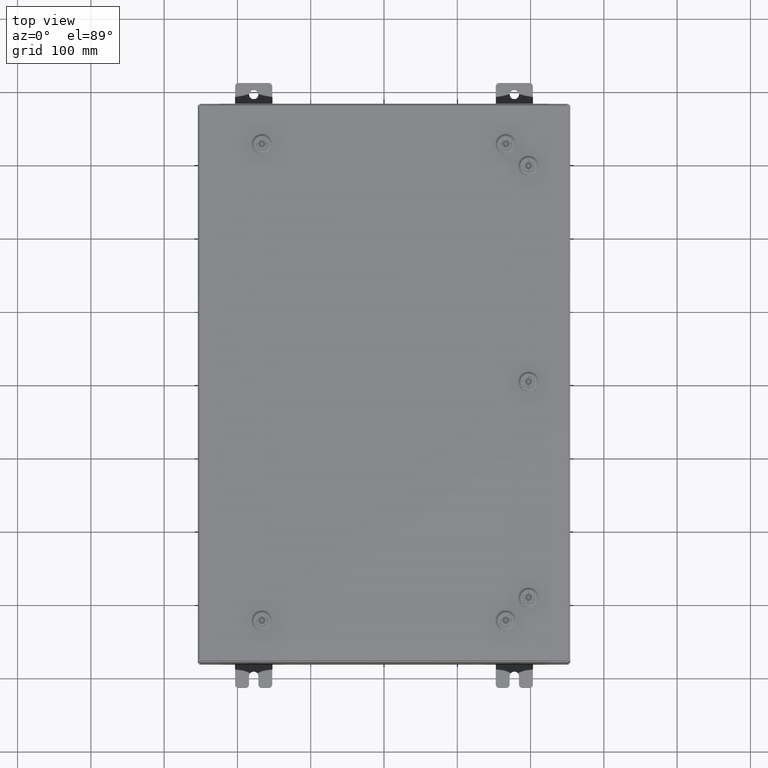
[diagram: clean part render]
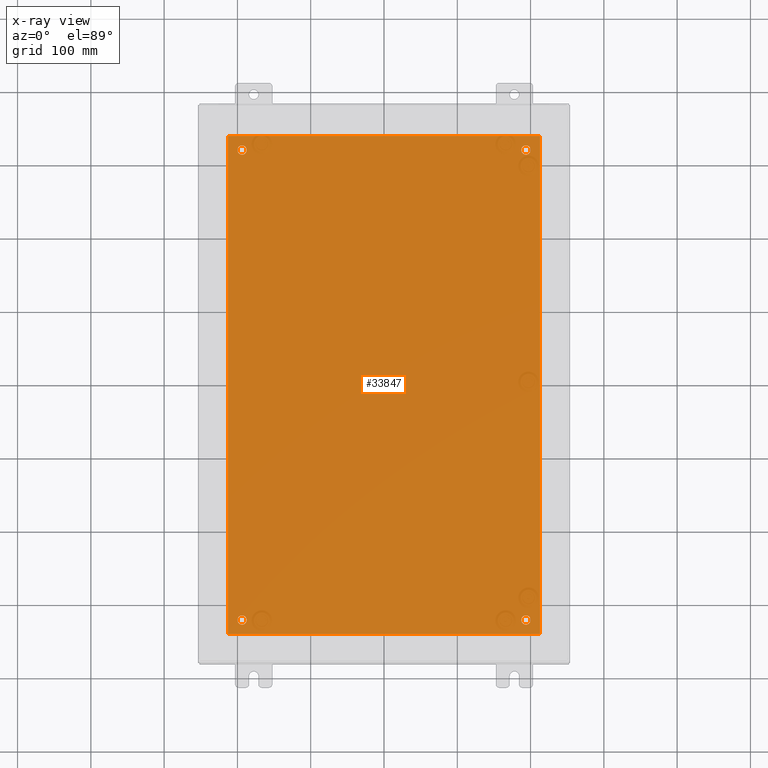
[diagram: x-ray — body ghosted, one internal face saturated and labeled with its STEP entity id]
A machine part, top view, then the same camera in x-ray: the body is ghosted and one INTERNAL B-rep face — a face not visible from any outside direction — is saturated and labeled: STEP entity #33847.
In plain terms, the highlighted planar face has unit normal (0, 0, -1).
Its self-contained STEP definition (entity closure, byte-faithful):
#164 = CARTESIAN_POINT ( 'NONE',  ( -7.625000000000002700, -12.62500000000000200, -0.1039999999999999800 ) ) ;
#3189 = CARTESIAN_POINT ( 'NONE',  ( -7.625000000000002700, -12.62500000000000200, -0.1039999999999999800 ) ) ;
#3429 = EDGE_LOOP ( 'NONE', ( #50123, #16015 ) ) ;
#4384 = CARTESIAN_POINT ( 'NONE',  ( -7.625000000000002700, 12.62500000000000200, -0.1039999999999999800 ) ) ;
#4609 = VERTEX_POINT ( 'NONE', #42115 ) ;
#5182 = DIRECTION ( 'NONE',  ( -1.000000000000000000, 0.0000000000000000000, 0.0000000000000000000 ) ) ;
#6778 = ORIENTED_EDGE ( 'NONE', *, *, #30167, .F. ) ;
#7789 = EDGE_CURVE ( 'NONE', #26997, #19842, #22113, .T. ) ;
#7870 = VECTOR ( 'NONE', #17754, 39.37007874015748100 ) ;
#8170 = DIRECTION ( 'NONE',  ( -1.000000000000000000, 0.0000000000000000000, 0.0000000000000000000 ) ) ;
#8265 = ORIENTED_EDGE ( 'NONE', *, *, #42971, .T. ) ;
#8497 = FACE_BOUND ( 'NONE', #3429, .T. ) ;
#8732 = LINE ( 'NONE', #25284, #20442 ) ;
#9301 = AXIS2_PLACEMENT_3D ( 'NONE', #44256, #14484, #49162 ) ;
#9312 = DIRECTION ( 'NONE',  ( -1.000000000000000000, 0.0000000000000000000, 0.0000000000000000000 ) ) ;
#9366 = ORIENTED_EDGE ( 'NONE', *, *, #46911, .T. ) ;
#9483 = AXIS2_PLACEMENT_3D ( 'NONE', #3189, #37897, #8170 ) ;
#10804 = CARTESIAN_POINT ( 'NONE',  ( -7.375000000000003600, 12.62500000000000200, -0.1039999999999999800 ) ) ;
#12040 = LINE ( 'NONE', #42420, #36953 ) ;
#12344 = CARTESIAN_POINT ( 'NONE',  ( 8.383000000000002700, -13.38299999999999200, -0.1039999999999992700 ) ) ;
#12511 = LINE ( 'NONE', #12344, #37395 ) ;
#13960 = CARTESIAN_POINT ( 'NONE',  ( -8.383000000000000900, -13.38299999999999400, -0.1040000000000009100 ) ) ;
#14308 = VERTEX_POINT ( 'NONE', #13960 ) ;
#14484 = DIRECTION ( 'NONE',  ( -0.0000000000000000000, -0.0000000000000000000, 1.000000000000000000 ) ) ;
#15433 = CARTESIAN_POINT ( 'NONE',  ( 7.625000000000002700, -12.62500000000000200, -0.1039999999999999800 ) ) ;
#15502 = EDGE_LOOP ( 'NONE', ( #24713, #42130 ) ) ;
#16015 = ORIENTED_EDGE ( 'NONE', *, *, #7789, .T. ) ;
#17401 = DIRECTION ( 'NONE',  ( 0.0000000000000000000, 1.000000000000000000, 0.0000000000000000000 ) ) ;
#17754 = DIRECTION ( 'NONE',  ( -1.000000000000000000, -0.0000000000000000000, -0.0000000000000000000 ) ) ;
#17767 = CARTESIAN_POINT ( 'NONE',  ( 8.383000000000002700, 13.38300000000000100, -0.1039999999999992700 ) ) ;
#18150 = ORIENTED_EDGE ( 'NONE', *, *, #46231, .F. ) ;
#18719 = VERTEX_POINT ( 'NONE', #54145 ) ;
#19265 = VERTEX_POINT ( 'NONE', #17767 ) ;
#19842 = VERTEX_POINT ( 'NONE', #61371 ) ;
#20037 = PLANE ( 'NONE',  #47157 ) ;
#20442 = VECTOR ( 'NONE', #54919, 39.37007874015748100 ) ;
#20465 = DIRECTION ( 'NONE',  ( -1.000000000000000000, 0.0000000000000000000, 0.0000000000000000000 ) ) ;
#20559 = DIRECTION ( 'NONE',  ( -0.0000000000000000000, -0.0000000000000000000, 1.000000000000000000 ) ) ;
#21673 = DIRECTION ( 'NONE',  ( -0.0000000000000000000, -0.0000000000000000000, 1.000000000000000000 ) ) ;
#22113 = CIRCLE ( 'NONE', #52376, 0.2499999999999998100 ) ;
#22432 = CIRCLE ( 'NONE', #27692, 0.2499999999999998100 ) ;
#22811 = CIRCLE ( 'NONE', #41194, 0.2499999999999987000 ) ;
#23204 = EDGE_CURVE ( 'NONE', #26461, #61687, #22432, .T. ) ;
#24469 = EDGE_CURVE ( 'NONE', #38144, #47423, #42506, .T. ) ;
#24713 = ORIENTED_EDGE ( 'NONE', *, *, #24469, .T. ) ;
#24731 = CARTESIAN_POINT ( 'NONE',  ( -7.875000000000002700, 12.62500000000000200, -0.1039999999999999800 ) ) ;
#25015 = DIRECTION ( 'NONE',  ( -1.000000000000000000, 0.0000000000000000000, -0.0000000000000000000 ) ) ;
#25284 = CARTESIAN_POINT ( 'NONE',  ( -8.383000000000000900, 13.38300000000000100, -0.1039999999999998300 ) ) ;
#26360 = ORIENTED_EDGE ( 'NONE', *, *, #23204, .T. ) ;
#26461 = VERTEX_POINT ( 'NONE', #10804 ) ;
#26997 = VERTEX_POINT ( 'NONE', #59467 ) ;
#27524 = CARTESIAN_POINT ( 'NONE',  ( 7.375000000000004400, 12.62500000000000200, -0.1039999999999999800 ) ) ;
#27548 = ORIENTED_EDGE ( 'NONE', *, *, #38956, .F. ) ;
#27692 = AXIS2_PLACEMENT_3D ( 'NONE', #51313, #21673, #56271 ) ;
#28335 = EDGE_CURVE ( 'NONE', #47423, #38144, #29061, .T. ) ;
#29061 = CIRCLE ( 'NONE', #57720, 0.2499999999999987000 ) ;
#29210 = DIRECTION ( 'NONE',  ( -0.0000000000000000000, -0.0000000000000000000, 1.000000000000000000 ) ) ;
#29787 = CARTESIAN_POINT ( 'NONE',  ( 0.0000000000000000000, 0.0000000000000000000, -0.1039999999999999800 ) ) ;
#30167 = EDGE_CURVE ( 'NONE', #51515, #14308, #8732, .T. ) ;
#32682 = CARTESIAN_POINT ( 'NONE',  ( 8.500000000000001800, 13.38300000000000300, -0.1040000000000009100 ) ) ;
#33847 = ADVANCED_FACE ( 'NONE', ( #8497, #49597, #61166, #59623, #46564 ), #20037, .T. ) ;
#34914 = DIRECTION ( 'NONE',  ( -0.0000000000000000000, -0.0000000000000000000, 1.000000000000000000 ) ) ;
#36953 = VECTOR ( 'NONE', #62431, 39.37007874015748100 ) ;
#37395 = VECTOR ( 'NONE', #17401, 39.37007874015748100 ) ;
#37400 = EDGE_LOOP ( 'NONE', ( #26360, #8265 ) ) ;
#37897 = DIRECTION ( 'NONE',  ( -0.0000000000000000000, -0.0000000000000000000, 1.000000000000000000 ) ) ;
#38144 = VERTEX_POINT ( 'NONE', #43984 ) ;
#38956 = EDGE_CURVE ( 'NONE', #14308, #18719, #12040, .T. ) ;
#39089 = DIRECTION ( 'NONE',  ( -0.0000000000000000000, -0.0000000000000000000, 1.000000000000000000 ) ) ;
#40459 = CIRCLE ( 'NONE', #9301, 0.2499999999999987000 ) ;
#41194 = AXIS2_PLACEMENT_3D ( 'NONE', #50198, #20559, #55170 ) ;
#42115 = CARTESIAN_POINT ( 'NONE',  ( 7.875000000000001800, 12.62500000000000200, -0.1039999999999999800 ) ) ;
#42130 = ORIENTED_EDGE ( 'NONE', *, *, #28335, .T. ) ;
#42420 = CARTESIAN_POINT ( 'NONE',  ( -8.500000000000000000, -13.38299999999999400, -0.1040000000000009100 ) ) ;
#42506 = CIRCLE ( 'NONE', #60436, 0.2499999999999987000 ) ;
#42971 = EDGE_CURVE ( 'NONE', #61687, #26461, #50714, .T. ) ;
#43984 = CARTESIAN_POINT ( 'NONE',  ( 7.875000000000001800, -12.62500000000000200, -0.1039999999999999800 ) ) ;
#44256 = CARTESIAN_POINT ( 'NONE',  ( 7.625000000000002700, 12.62500000000000200, -0.1039999999999999800 ) ) ;
#44723 = EDGE_LOOP ( 'NONE', ( #27548, #6778, #18150, #61144 ) ) ;
#46065 = EDGE_CURVE ( 'NONE', #18719, #19265, #12511, .T. ) ;
#46231 = EDGE_CURVE ( 'NONE', #19265, #51515, #60542, .T. ) ;
#46564 = FACE_OUTER_BOUND ( 'NONE', #44723, .T. ) ;
#46911 = EDGE_CURVE ( 'NONE', #4609, #53896, #40459, .T. ) ;
#47157 = AXIS2_PLACEMENT_3D ( 'NONE', #29787, #54649, #25015 ) ;
#47423 = VERTEX_POINT ( 'NONE', #63471 ) ;
#49162 = DIRECTION ( 'NONE',  ( -1.000000000000000000, 0.0000000000000000000, 0.0000000000000000000 ) ) ;
#49597 = FACE_BOUND ( 'NONE', #15502, .T. ) ;
#50091 = DIRECTION ( 'NONE',  ( -0.0000000000000000000, -0.0000000000000000000, 1.000000000000000000 ) ) ;
#50123 = ORIENTED_EDGE ( 'NONE', *, *, #52545, .T. ) ;
#50198 = CARTESIAN_POINT ( 'NONE',  ( 7.625000000000002700, 12.62500000000000200, -0.1039999999999999800 ) ) ;
#50714 = CIRCLE ( 'NONE', #58520, 0.2499999999999998100 ) ;
#51313 = CARTESIAN_POINT ( 'NONE',  ( -7.625000000000002700, 12.62500000000000200, -0.1039999999999999800 ) ) ;
#51515 = VERTEX_POINT ( 'NONE', #56069 ) ;
#52376 = AXIS2_PLACEMENT_3D ( 'NONE', #164, #34914, #5182 ) ;
#52545 = EDGE_CURVE ( 'NONE', #19842, #26997, #56185, .T. ) ;
#53896 = VERTEX_POINT ( 'NONE', #27524 ) ;
#54145 = CARTESIAN_POINT ( 'NONE',  ( 8.383000000000002700, -13.38299999999999200, -0.1039999999999992700 ) ) ;
#54405 = EDGE_CURVE ( 'NONE', #53896, #4609, #22811, .T. ) ;
#54649 = DIRECTION ( 'NONE',  ( 0.0000000000000000000, 0.0000000000000000000, -1.000000000000000000 ) ) ;
#54919 = DIRECTION ( 'NONE',  ( 0.0000000000000000000, -1.000000000000000000, 0.0000000000000000000 ) ) ;
#55170 = DIRECTION ( 'NONE',  ( -1.000000000000000000, 0.0000000000000000000, 0.0000000000000000000 ) ) ;
#55981 = EDGE_LOOP ( 'NONE', ( #9366, #57668 ) ) ;
#56069 = CARTESIAN_POINT ( 'NONE',  ( -8.383000000000000900, 13.38300000000000100, -0.1039999999999998300 ) ) ;
#56185 = CIRCLE ( 'NONE', #9483, 0.2499999999999998100 ) ;
#56271 = DIRECTION ( 'NONE',  ( -1.000000000000000000, 0.0000000000000000000, 0.0000000000000000000 ) ) ;
#57668 = ORIENTED_EDGE ( 'NONE', *, *, #54405, .T. ) ;
#57720 = AXIS2_PLACEMENT_3D ( 'NONE', #58797, #29210, #63764 ) ;
#58520 = AXIS2_PLACEMENT_3D ( 'NONE', #4384, #39089, #9312 ) ;
#58797 = CARTESIAN_POINT ( 'NONE',  ( 7.625000000000002700, -12.62500000000000200, -0.1039999999999999800 ) ) ;
#59467 = CARTESIAN_POINT ( 'NONE',  ( -7.875000000000002700, -12.62500000000000200, -0.1039999999999999800 ) ) ;
#59623 = FACE_BOUND ( 'NONE', #37400, .T. ) ;
#60436 = AXIS2_PLACEMENT_3D ( 'NONE', #15433, #50091, #20465 ) ;
#60542 = LINE ( 'NONE', #32682, #7870 ) ;
#61144 = ORIENTED_EDGE ( 'NONE', *, *, #46065, .F. ) ;
#61166 = FACE_BOUND ( 'NONE', #55981, .T. ) ;
#61371 = CARTESIAN_POINT ( 'NONE',  ( -7.375000000000003600, -12.62500000000000200, -0.1039999999999999800 ) ) ;
#61687 = VERTEX_POINT ( 'NONE', #24731 ) ;
#62431 = DIRECTION ( 'NONE',  ( 1.000000000000000000, -0.0000000000000000000, -0.0000000000000000000 ) ) ;
#63471 = CARTESIAN_POINT ( 'NONE',  ( 7.375000000000004400, -12.62500000000000200, -0.1039999999999999800 ) ) ;
#63764 = DIRECTION ( 'NONE',  ( -1.000000000000000000, 0.0000000000000000000, 0.0000000000000000000 ) ) ;